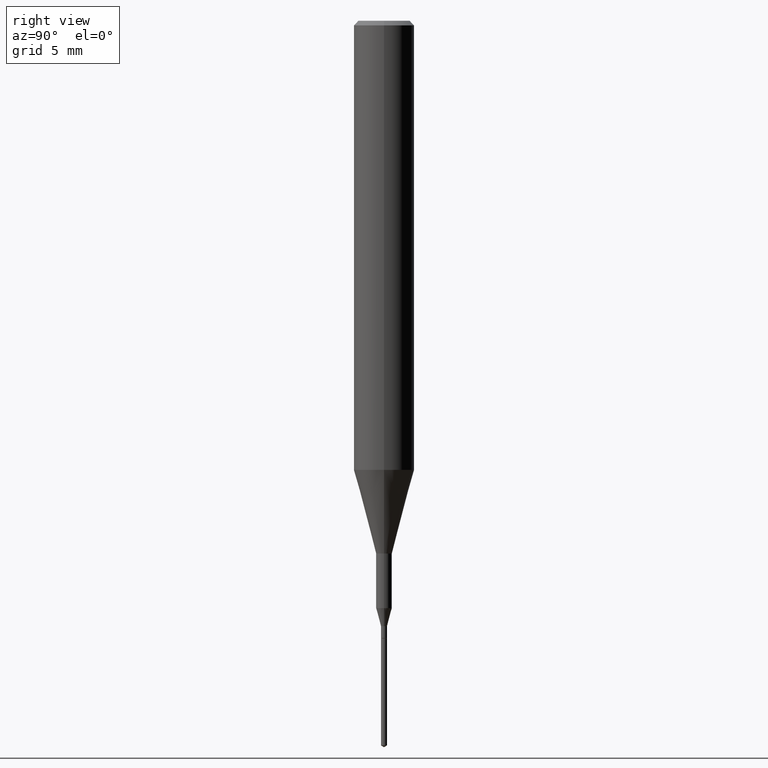
[diagram: clean part render]
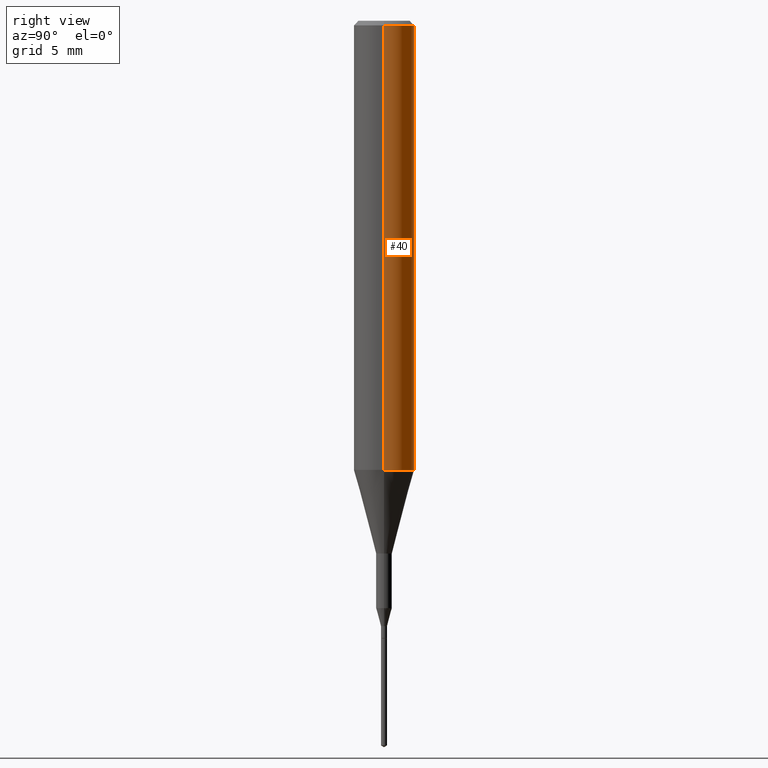
[diagram: same view with one face highlighted and labeled with its STEP entity id]
A machine part, right view. The second image highlights one B-rep face of the part: STEP entity #40.
In plain terms, the highlighted cylindrical surface (edge-blend (fillet) strip) has radius 1.5875 mm, axis along (-0, 0, 1).
Its self-contained STEP definition (entity closure, byte-faithful):
#13 = CARTESIAN_POINT ( 'NONE',  ( 2.267909797027042920E-29, -3.237974131778804114E-15, -0.9273926501499395458 ) ) ;
#40 = ADVANCED_FACE ( 'NONE', ( #415 ), #188, .T. ) ;
#53 = ORIENTED_EDGE ( 'NONE', *, *, #147, .F. ) ;
#57 = DIRECTION ( 'NONE',  ( 1.000000000000000000, -6.982962677686265922E-15, 0.000000000000000000 ) ) ;
#61 = ORIENTED_EDGE ( 'NONE', *, *, #334, .T. ) ;
#76 = ORIENTED_EDGE ( 'NONE', *, *, #140, .F. ) ;
#84 = AXIS2_PLACEMENT_3D ( 'NONE', #374, #551, #285 ) ;
#91 = EDGE_CURVE ( 'NONE', #211, #383, #423, .T. ) ;
#111 = DIRECTION ( 'NONE',  ( 1.000000000000000000, -6.982962677686266711E-15, 0.000000000000000000 ) ) ;
#126 = VECTOR ( 'NONE', #403, 39.37007874015748143 ) ;
#140 = EDGE_CURVE ( 'NONE', #481, #446, #494, .T. ) ;
#147 = EDGE_CURVE ( 'NONE', #211, #481, #241, .T. ) ;
#156 = CARTESIAN_POINT ( 'NONE',  ( 2.292627005798581499E-31, -3.273263755165472033E-17, -0.009375000000000065573 ) ) ;
#188 = CYLINDRICAL_SURFACE ( 'NONE', #84, 0.06250000000000005551 ) ;
#189 = LINE ( 'NONE', #552, #126 ) ;
#211 = VERTEX_POINT ( 'NONE', #449 ) ;
#230 = CARTESIAN_POINT ( 'NONE',  ( 0.06250000000000005551, -4.364351673553920638E-16, 3.047610484872462323E-30 ) ) ;
#241 = LINE ( 'NONE', #230, #542 ) ;
#251 = EDGE_LOOP ( 'NONE', ( #473, #61, #76, #53 ) ) ;
#263 = AXIS2_PLACEMENT_3D ( 'NONE', #13, #290, #57 ) ;
#277 = AXIS2_PLACEMENT_3D ( 'NONE', #156, #524, #111 ) ;
#285 = DIRECTION ( 'NONE',  ( 1.000000000000000000, -6.982962677686266711E-15, 4.876176775795935232E-29 ) ) ;
#290 = DIRECTION ( 'NONE',  ( -2.445468806185136597E-29, 3.491481338843145583E-15, 1.000000000000000000 ) ) ;
#334 = EDGE_CURVE ( 'NONE', #383, #446, #189, .T. ) ;
#374 = CARTESIAN_POINT ( 'NONE',  ( 0.000000000000000000, 0.000000000000000000, 0.000000000000000000 ) ) ;
#383 = VERTEX_POINT ( 'NONE', #567 ) ;
#403 = DIRECTION ( 'NONE',  ( -2.445468806185136877E-29, 3.491481338843145188E-15, 1.000000000000000000 ) ) ;
#412 = DIRECTION ( 'NONE',  ( -2.445468806185136877E-29, 3.491481338843145188E-15, 1.000000000000000000 ) ) ;
#415 = FACE_OUTER_BOUND ( 'NONE', #251, .T. ) ;
#423 = CIRCLE ( 'NONE', #263, 0.06250000000000011102 ) ;
#431 = CARTESIAN_POINT ( 'NONE',  ( -0.06250000000000000000, -1.191264174815165938E-15, -0.009375000000000065573 ) ) ;
#446 = VERTEX_POINT ( 'NONE', #431 ) ;
#449 = CARTESIAN_POINT ( 'NONE',  ( 0.06250000000000011102, -3.674409299134196572E-15, -0.9273926501499395458 ) ) ;
#454 = CARTESIAN_POINT ( 'NONE',  ( 0.06250000000000000000, -4.691678049070464390E-16, -0.009375000000000065573 ) ) ;
#473 = ORIENTED_EDGE ( 'NONE', *, *, #91, .T. ) ;
#481 = VERTEX_POINT ( 'NONE', #454 ) ;
#494 = CIRCLE ( 'NONE', #277, 0.06250000000000000000 ) ;
#524 = DIRECTION ( 'NONE',  ( -2.445468806185136597E-29, 3.491481338843145583E-15, 1.000000000000000000 ) ) ;
#542 = VECTOR ( 'NONE', #412, 39.37007874015748143 ) ;
#551 = DIRECTION ( 'NONE',  ( -2.445468806185136597E-29, 3.491481338843145583E-15, 1.000000000000000000 ) ) ;
#552 = CARTESIAN_POINT ( 'NONE',  ( -0.06250000000000005551, 4.440892098500630106E-16, -3.074334431409318916E-30 ) ) ;
#567 = CARTESIAN_POINT ( 'NONE',  ( -0.06250000000000011102, -2.793884921928740709E-15, -0.9273926501499395458 ) ) ;